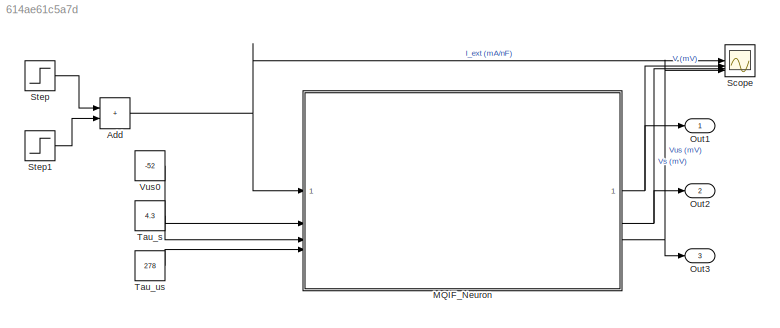
MODEL slx_614ae61c5a7d
KIND model
CONFIG AbsTol = auto
CONFIG EnableMultiTasking = off
CONFIG FixedStep = 1e-4
CONFIG MaxStep = auto
CONFIG MinStep = auto
CONFIG RelTol = 1e-3
CONFIG SampleTimeConstraint = Unconstrained
CONFIG SolverName = ode1be
CONFIG StartTime = 0.0
CONFIG StopTime = 10
BLOCK [Sum] Add
  IconShape = rectangular
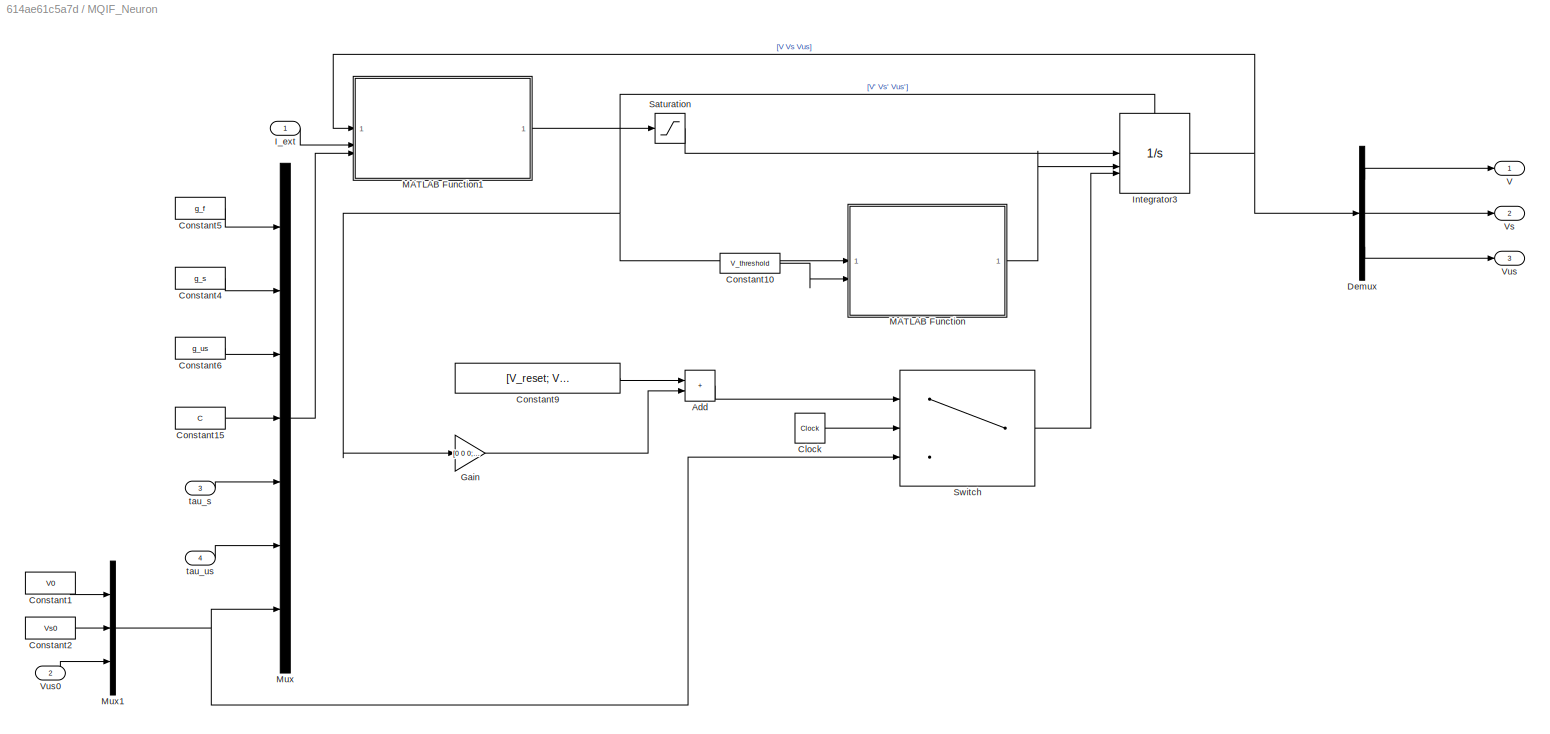
BLOCK [SubSystem] MQIF_Neuron
  TreatAsAtomicUnit = on
BLOCK [Sum] MQIF_Neuron/Add
  IconShape = rectangular
BLOCK [Clock] MQIF_Neuron/Clock
BLOCK [Constant] MQIF_Neuron/Constant1
  Value = V0
BLOCK [Constant] MQIF_Neuron/Constant10
  Value = V_threshold
BLOCK [Constant] MQIF_Neuron/Constant15
  Value = C
BLOCK [Constant] MQIF_Neuron/Constant2
  Value = Vs0
BLOCK [Constant] MQIF_Neuron/Constant4
  Value = g_s
BLOCK [Constant] MQIF_Neuron/Constant5
  Value = g_f
BLOCK [Constant] MQIF_Neuron/Constant6
  Value = g_us
BLOCK [Constant] MQIF_Neuron/Constant9
  Value = [V_reset; Vs_reset; delta_Vus]
BLOCK [Demux] MQIF_Neuron/Demux
  Outputs = 3
BLOCK [Gain] MQIF_Neuron/Gain
  Gain = [0 0 0; 0 0 0; 0 0 1]
  Multiplication = Matrix(K*u) (u vector)
BLOCK [Inport] MQIF_Neuron/I_ext
BLOCK [Integrator] MQIF_Neuron/Integrator3
  ExternalReset = rising
  InitialCondition = [V0 Vs0 Vus0]
  InitialConditionSource = external
  LimitOutput = on
  LowerSaturationLimit = [-100; -100; -100]
  ShowStatePort = on
  UpperSaturationLimit = [30; 10; inf]
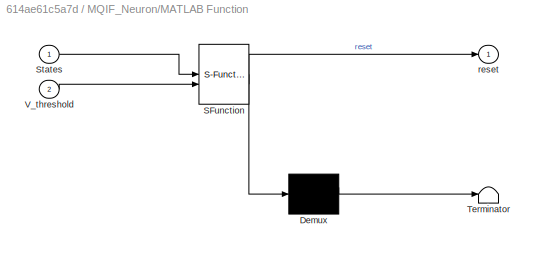
BLOCK [SubSystem] MQIF_Neuron/MATLAB Function
  ErrorFcn = Stateflow.Translate.translate
  LibrarySourceBlock = simulink/User-Defined\nFunctions/MATLAB Function
  PermitHierarchicalResolution = ExplicitOnly
  SFBlockType = MATLAB Function
  TreatAsAtomicUnit = on
BLOCK [Demux] MQIF_Neuron/MATLAB Function/ Demux 
  Outputs = 1
BLOCK [S-Function] MQIF_Neuron/MATLAB Function/ SFunction 
  EnableBusSupport = on
  FunctionName = sf_sfun
  PortCounts = [2 2]
  SFcnIsStateOwnerBlock = off
  SFunctionDeploymentMode = off
  Tag = Stateflow S-Function 2
BLOCK [Terminator] MQIF_Neuron/MATLAB Function/ Terminator 
BLOCK [Inport] MQIF_Neuron/MATLAB Function/States
BLOCK [Inport] MQIF_Neuron/MATLAB Function/V_threshold
  Port = 2
BLOCK [Outport] MQIF_Neuron/MATLAB Function/reset
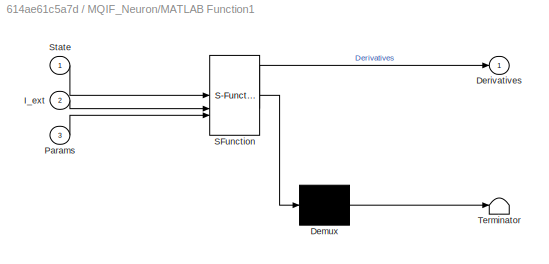
BLOCK [SubSystem] MQIF_Neuron/MATLAB Function1
  ErrorFcn = Stateflow.Translate.translate
  LibrarySourceBlock = simulink/User-Defined\nFunctions/MATLAB Function
  PermitHierarchicalResolution = ExplicitOnly
  SFBlockType = MATLAB Function
  TreatAsAtomicUnit = on
BLOCK [Demux] MQIF_Neuron/MATLAB Function1/ Demux 
  Outputs = 1
BLOCK [S-Function] MQIF_Neuron/MATLAB Function1/ SFunction 
  EnableBusSupport = on
  FunctionName = sf_sfun
  PortCounts = [3 2]
  SFcnIsStateOwnerBlock = off
  SFunctionDeploymentMode = off
  Tag = Stateflow S-Function 1
BLOCK [Terminator] MQIF_Neuron/MATLAB Function1/ Terminator 
BLOCK [Outport] MQIF_Neuron/MATLAB Function1/Derivatives
BLOCK [Inport] MQIF_Neuron/MATLAB Function1/I_ext
  Port = 2
BLOCK [Inport] MQIF_Neuron/MATLAB Function1/Params
  Port = 3
BLOCK [Inport] MQIF_Neuron/MATLAB Function1/State
BLOCK [Mux] MQIF_Neuron/Mux
  DisplayOption = bar
  Inputs = 7
BLOCK [Mux] MQIF_Neuron/Mux1
  DisplayOption = bar
  Inputs = 3
BLOCK [Saturate] MQIF_Neuron/Saturation
  LowerLimit = -10^4
  UpperLimit = 10^4
BLOCK [Switch] MQIF_Neuron/Switch
  Criteria = u2 > Threshold
  InputSameDT = off
  SaturateOnIntegerOverflow = off
  Threshold = 1e-3
BLOCK [Outport] MQIF_Neuron/V
BLOCK [Outport] MQIF_Neuron/Vs
  Port = 2
BLOCK [Outport] MQIF_Neuron/Vus
  Port = 3
BLOCK [Inport] MQIF_Neuron/Vus0
  Port = 2
BLOCK [Inport] MQIF_Neuron/tau_s
  Port = 3
BLOCK [Inport] MQIF_Neuron/tau_us
  Port = 4
BLOCK [Outport] Out1
BLOCK [Outport] Out2
  Port = 2
BLOCK [Outport] Out3
  Port = 3
BLOCK [Scope] Scope
  Floating = off
  NumInputPorts = 4
  ScopeSpecificationString = Simulink.scopes.TimeScopeBlockCfg('CurrentConfiguration', extmgr.ConfigurationSet(extmgr.Configuration('Core','General UI',true),extmgr.Configuration('Core','Source UI',true),extmgr.Configuration('Sources','WiredSimulink',true),extmgr.Configuration('Visuals','Time Domain',true,'SerializedDisplays',{struct('MinYLimReal','-0.625','MaxYLimReal','5.625','YLabelReal','','MinYLimMag','0.00000','MaxYLimM...<+3395ch>
BLOCK [Step] Step
  After = 5
  SampleTime = 0
BLOCK [Step] Step1
  After = -5
  SampleTime = 0
  Time = 3
BLOCK [Constant] Tau_s
  Value = 4.3
BLOCK [Constant] Tau_us
  Value = 278
BLOCK [Constant] Vus0
  Value = -52
NET Add:1 -> MQIF_Neuron:1, Scope:1
LINE MQIF_Neuron/Add:1 -> MQIF_Neuron/Switch:1
LINE MQIF_Neuron/Clock:1 -> MQIF_Neuron/Switch:2
LINE MQIF_Neuron/Constant10:1 -> MQIF_Neuron/MATLAB Function:2
LINE MQIF_Neuron/Constant15:1 -> MQIF_Neuron/Mux:4
LINE MQIF_Neuron/Constant1:1 -> MQIF_Neuron/Mux1:1
LINE MQIF_Neuron/Constant2:1 -> MQIF_Neuron/Mux1:2
LINE MQIF_Neuron/Constant4:1 -> MQIF_Neuron/Mux:2
LINE MQIF_Neuron/Constant5:1 -> MQIF_Neuron/Mux:1
LINE MQIF_Neuron/Constant6:1 -> MQIF_Neuron/Mux:3
LINE MQIF_Neuron/Constant9:1 -> MQIF_Neuron/Add:1
LINE MQIF_Neuron/Demux:1 -> MQIF_Neuron/V:1
LINE MQIF_Neuron/Demux:2 -> MQIF_Neuron/Vs:1
LINE MQIF_Neuron/Demux:3 -> MQIF_Neuron/Vus:1
LINE MQIF_Neuron/Gain:1 -> MQIF_Neuron/Add:2
LINE MQIF_Neuron/I_ext:1 -> MQIF_Neuron/MATLAB Function1:2
NET MQIF_Neuron/Integrator3:1 -> MQIF_Neuron/Demux:1, MQIF_Neuron/MATLAB Function1:1
NET MQIF_Neuron/Integrator3:state -> MQIF_Neuron/Gain:1, MQIF_Neuron/MATLAB Function:1
LINE MQIF_Neuron/MATLAB Function1:1 -> MQIF_Neuron/Saturation:1
LINE MQIF_Neuron/MATLAB Function:1 -> MQIF_Neuron/Integrator3:2
NET MQIF_Neuron/Mux1:1 -> MQIF_Neuron/Mux:7, MQIF_Neuron/Switch:3
LINE MQIF_Neuron/Mux:1 -> MQIF_Neuron/MATLAB Function1:3
LINE MQIF_Neuron/Saturation:1 -> MQIF_Neuron/Integrator3:1
LINE MQIF_Neuron/Switch:1 -> MQIF_Neuron/Integrator3:3
LINE MQIF_Neuron/Vus0:1 -> MQIF_Neuron/Mux1:3
LINE MQIF_Neuron/tau_s:1 -> MQIF_Neuron/Mux:5
LINE MQIF_Neuron/tau_us:1 -> MQIF_Neuron/Mux:6
NET MQIF_Neuron:1 -> Out1:1, Scope:2
NET MQIF_Neuron:2 -> Out2:1, Scope:3
NET MQIF_Neuron:3 -> Out3:1, Scope:4
LINE Step1:1 -> Add:2
LINE Step:1 -> Add:1
LINE Tau_s:1 -> MQIF_Neuron:3
LINE Tau_us:1 -> MQIF_Neuron:4
LINE Vus0:1 -> MQIF_Neuron:2
note: NET lines group one-source signal fan-out (src -> all destinations, sorted); 1:1 wires keep LINE
CHART MQIF_Neuron/MATLAB Function1 states=1 transitions=1
  STATE_LABEL 'eML_blk_kernel()'
  STATE_LABEL 'SCRIPT:\nfunction Derivatives = ODE(State, I_ext, Params)\n    V = State(1);\n    Vs = State(2);\n    Vus = State(3);\n\n    g_f = Params(1);\n    g_s = Params(2);\n    g_us = Params(3);\n    C = Params(4);\n    tau_s = Params(5);\n    tau_us = Params(6);\n    V0 = Params(7);\n    Vs0 = Params(8);\n    Vus0 = Params(9);\n\n    \n    V_dot = 250*((I_ext + g_f*((V-V0)^2) - g_s*((Vs-Vs0)^2) - g_us*((Vus-Vus0)^2)) / C...<+129ch>'
CHART MQIF_Neuron/MATLAB Function states=1 transitions=1
  STATE_LABEL 'eML_blk_kernel()'
  STATE_LABEL 'SCRIPT:\nfunction reset = ResetTrigger(States, V_threshold)\n\nV = States(1);\n\nreset = (V > V_threshold);\n\nend'
CHART  states=0 transitions=0
CHART  states=0 transitions=0
